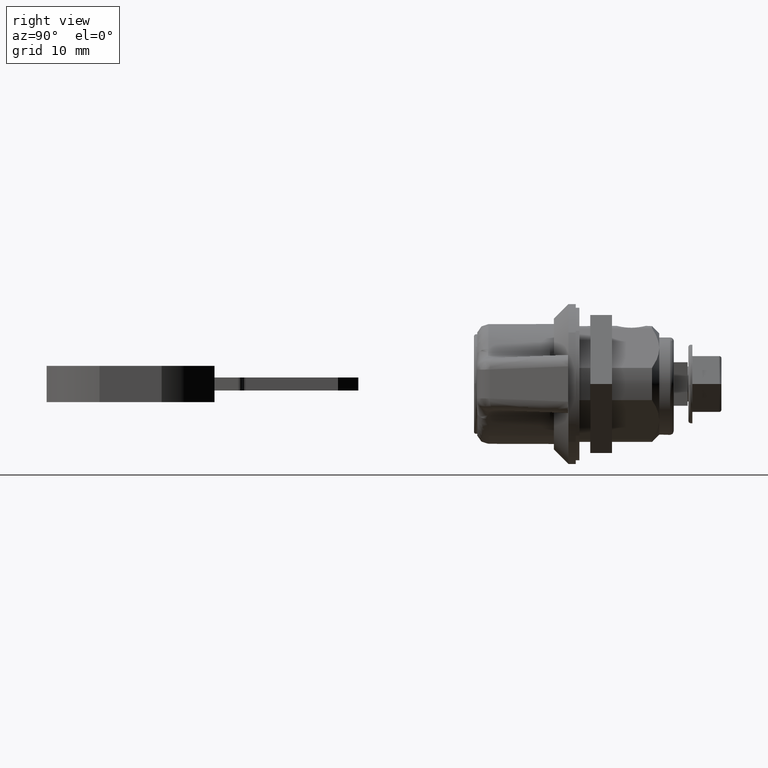
[diagram: clean part render]
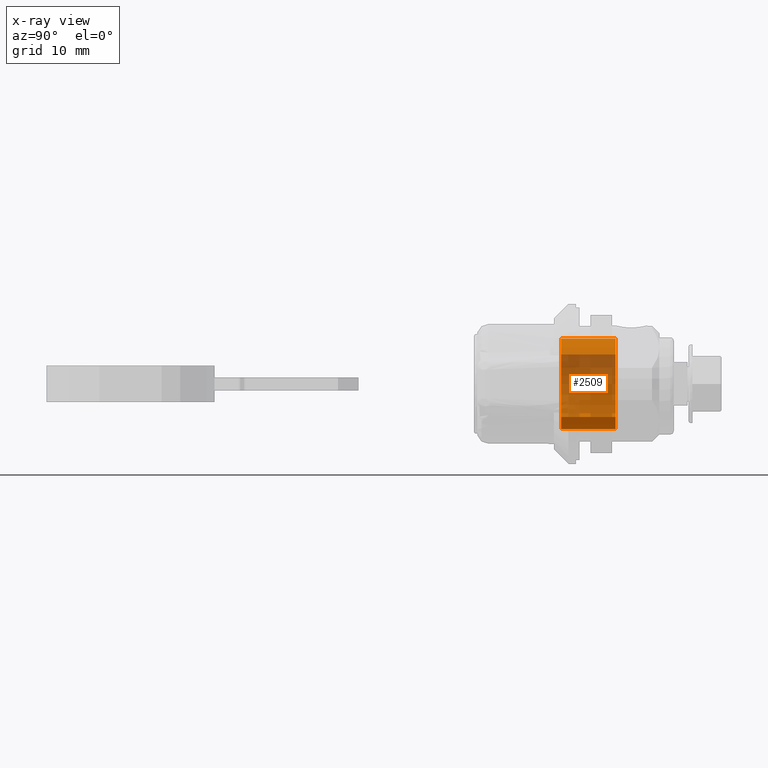
[diagram: x-ray — body ghosted, one internal face saturated and labeled with its STEP entity id]
A machine part, right view, then the same camera in x-ray: the body is ghosted and one INTERNAL B-rep face — a face not visible from any outside direction — is saturated and labeled: STEP entity #2509.
In plain terms, the highlighted face is a freeform B-spline surface patch.
Its self-contained STEP definition (entity closure, byte-faithful):
#2353=CARTESIAN_POINT('',(5.737499857507699,-4.772222768377906,4.035887739887772));
#2354=CARTESIAN_POINT('',(5.737499857507699,-4.656717395196967,4.172466705233175));
#2355=CARTESIAN_POINT('',(5.737499857507699,-4.533589818826797,4.302216098086075));
#2356=CARTESIAN_POINT('',(5.737499857507698,-0.231373720740835,8.835805916912870));
#2357=CARTESIAN_POINT('',(5.737499857507699,4.302216098085961,4.533589818826910));
#2358=CARTESIAN_POINT('',(5.737499857507698,8.835805916912758,0.231373720740949));
#2359=CARTESIAN_POINT('',(5.737499857507699,4.533589818826797,-4.302216098085848));
#2360=CARTESIAN_POINT('',(5.737499857507698,0.231373720740835,-8.835805916912644));
#2361=CARTESIAN_POINT('',(5.737499857507699,-4.302216098085961,-4.533589818826683));
#2362=CARTESIAN_POINT('',(-2.142187642492250,-4.772222768377906,4.035887739887772));
#2363=CARTESIAN_POINT('',(-2.142187642492250,-4.656717395196967,4.172466705233175));
#2364=CARTESIAN_POINT('',(-2.142187642492250,-4.533589818826797,4.302216098086075));
#2365=CARTESIAN_POINT('',(-2.142187642492249,-0.231373720740835,8.835805916912870));
#2366=CARTESIAN_POINT('',(-2.142187642492250,4.302216098085961,4.533589818826910));
#2367=CARTESIAN_POINT('',(-2.142187642492249,8.835805916912758,0.231373720740949));
#2368=CARTESIAN_POINT('',(-2.142187642492250,4.533589818826797,-4.302216098085848));
#2369=CARTESIAN_POINT('',(-2.142187642492249,0.231373720740835,-8.835805916912644));
#2370=CARTESIAN_POINT('',(-2.142187642492250,-4.302216098085961,-4.533589818826683));
#2378=(BOUNDED_SURFACE()B_SPLINE_SURFACE(2,1,((#2353,#2362),(#2354,#2363),(#2355,#2364),(#2356,#2365),(#2357,#2366),(#2358,#2367),(#2359,#2368),(#2360,#2369),(#2361,#2370)),.UNSPECIFIED.,.F.,.F.,.U.)B_SPLINE_SURFACE_WITH_KNOTS((3,2,2,2,3),(2,2),(0.0,0.414213562373095,10.769552621700470,21.124891681027840,31.480230740355211),(0.0,7.879687499999949),.UNSPECIFIED.)GEOMETRIC_REPRESENTATION_ITEM()RATIONAL_B_SPLINE_SURFACE(((0.977505800795127,0.977505800795127),(0.988284271247462,0.988284271247462),(1.0,1.0),(0.707106781186548,0.707106781186548),(1.0,1.0),(0.707106781186548,0.707106781186548),(1.0,1.0),(0.707106781186548,0.707106781186548),(1.0,1.0)))REPRESENTATION_ITEM('')SURFACE());
#2379=CARTESIAN_POINT('',(5.549999857511837,-4.772223091826428,4.035888013487078));
#2380=VERTEX_POINT('',#2379);
#2381=CARTESIAN_POINT('',(5.549999857507700,0.0,6.250000000000114));
#2382=VERTEX_POINT('',#2381);
#2383=CARTESIAN_POINT('',(5.549999857511837,-4.772223091826428,4.035888013487078));
#2384=CARTESIAN_POINT('',(5.549999857511542,-4.425324034719100,4.446268912904022));
#2385=CARTESIAN_POINT('',(5.549999857510858,-3.645917832335862,5.157474801621769));
#2386=CARTESIAN_POINT('',(5.549999857509797,-2.413188762335102,5.812939267992069));
#2387=CARTESIAN_POINT('',(5.549999857508731,-1.187795303344650,6.171936204663518));
#2388=CARTESIAN_POINT('',(5.549999857508075,-0.424221928936391,6.250058372444712));
#2389=CARTESIAN_POINT('',(5.549999857507700,0.0,6.250000000000114));
#2390=B_SPLINE_CURVE_WITH_KNOTS('',3,(#2383,#2384,#2385,#2386,#2387,#2388,#2389),.UNSPECIFIED.,.F.,.U.,(4,1,1,1,4),(0.000000019635547,1.612050358420226,3.139235488905414,4.157383999816719,5.430052017227407),.UNSPECIFIED.);
#2391=EDGE_CURVE('',#2380,#2382,#2390,.T.);
#2392=ORIENTED_EDGE('',*,*,#2391,.T.);
#2393=CARTESIAN_POINT('',(5.549999857507700,6.249999999999764,-0.000001718434066));
#2394=VERTEX_POINT('',#2393);
#2395=CARTESIAN_POINT('',(5.549999857507700,0.0,6.250000000000114));
#2396=CARTESIAN_POINT('',(5.549999857507702,0.357925932443960,6.250018125414068));
#2397=CARTESIAN_POINT('',(5.549999857507698,1.150484070380060,6.181773486292920));
#2398=CARTESIAN_POINT('',(5.549999857507708,2.263419610876691,5.866430276711271));
#2399=CARTESIAN_POINT('',(5.549999857507695,3.432430367404526,5.278052811131130));
#2400=CARTESIAN_POINT('',(5.549999857507707,4.417868364656568,4.489383528433169));
#2401=CARTESIAN_POINT('',(5.549999857507691,5.177584146571000,3.551814117631621));
#2402=CARTESIAN_POINT('',(5.549999857507729,5.771583406701952,2.503486151143590));
#2403=CARTESIAN_POINT('',(5.549999857507633,6.159407415108974,1.329457897016730));
#2404=CARTESIAN_POINT('',(5.549999857507763,6.250029398176525,0.409050423241532));
#2405=CARTESIAN_POINT('',(5.549999857507700,6.249999999999764,-0.000001718434066));
#2406=B_SPLINE_CURVE_WITH_KNOTS('',3,(#2395,#2396,#2397,#2398,#2399,#2400,#2401,#2402,#2403,#2404,#2405),.UNSPECIFIED.,.F.,.U.,(4,1,1,1,1,1,1,1,4),(0.000000077575528,1.073786425209429,2.377685244971269,3.451479842068220,4.985446546824647,6.135943936953376,7.056354885323168,8.590365516479002,9.817539611516082),.UNSPECIFIED.);
#2407=EDGE_CURVE('',#2382,#2394,#2406,.T.);
#2408=ORIENTED_EDGE('',*,*,#2407,.T.);
#2409=CARTESIAN_POINT('',(5.549999857507700,0.0,-6.249999999999886));
#2410=VERTEX_POINT('',#2409);
#2411=CARTESIAN_POINT('',(5.549999857507700,6.249999999999764,-0.000001718434066));
#2412=CARTESIAN_POINT('',(5.549999857507701,6.250016550534957,-0.357927141868768));
#2413=CARTESIAN_POINT('',(5.549999857507702,6.181778845629067,-1.150488312491464));
#2414=CARTESIAN_POINT('',(5.549999857507688,5.866434341947322,-2.263425042678031));
#2415=CARTESIAN_POINT('',(5.549999857507710,5.324143626971752,-3.340718503844944));
#2416=CARTESIAN_POINT('',(5.549999857507697,4.701933066465572,-4.158496199970537));
#2417=CARTESIAN_POINT('',(5.549999857507697,3.885679955769696,-4.935660035261714));
#2418=CARTESIAN_POINT('',(5.549999857507718,3.008824478193837,-5.521582762051125));
#2419=CARTESIAN_POINT('',(5.549999857507698,2.039737446559116,-5.929886900198724));
#2420=CARTESIAN_POINT('',(5.549999857507576,1.073757181518244,-6.184488770560591));
#2421=CARTESIAN_POINT('',(5.549999857508009,0.409060620411965,-6.250057453708513));
#2422=CARTESIAN_POINT('',(5.549999857507700,0.0,-6.249999999999886));
#2423=B_SPLINE_CURVE_WITH_KNOTS('',3,(#2411,#2412,#2413,#2414,#2415,#2416,#2417,#2418,#2419,#2420,#2421,#2422),.UNSPECIFIED.,.F.,.U.,(4,1,1,1,1,1,1,1,1,4),(0.000000078177489,1.073786214077876,2.377684776297214,3.451479160883383,4.678702323695970,5.445636560566485,6.826248308981661,7.823357122230417,8.590363821540986,9.817537674428078),.UNSPECIFIED.);
#2424=EDGE_CURVE('',#2394,#2410,#2423,.T.);
#2425=ORIENTED_EDGE('',*,*,#2424,.T.);
#2426=CARTESIAN_POINT('',(5.549999857503693,-4.302215831596614,-4.533589480269568));
#2427=VERTEX_POINT('',#2426);
#2428=CARTESIAN_POINT('',(5.549999857507700,0.0,-6.249999999999886));
#2429=CARTESIAN_POINT('',(5.549999857507314,-0.420142178554452,-6.250050602825311));
#2430=CARTESIAN_POINT('',(5.549999857506496,-1.285125850283165,-6.162484351232604));
#2431=CARTESIAN_POINT('',(5.549999857505465,-2.398188979646017,-5.807871846621687));
#2432=CARTESIAN_POINT('',(5.549999857504513,-3.427637238074189,-5.263492716444940));
#2433=CARTESIAN_POINT('',(5.549999857503974,-3.997497165476650,-4.822846106288043));
#2434=CARTESIAN_POINT('',(5.549999857503693,-4.302215831596614,-4.533589480269568));
#2435=B_SPLINE_CURVE_WITH_KNOTS('',3,(#2428,#2429,#2430,#2431,#2432,#2433,#2434),.UNSPECIFIED.,.F.,.U.,(4,1,1,1,4),(0.000000021410777,1.260428944052890,2.594987939485224,3.484712679943367,4.745141602566381),.UNSPECIFIED.);
#2436=EDGE_CURVE('',#2410,#2427,#2435,.T.);
#2437=ORIENTED_EDGE('',*,*,#2436,.T.);
#2438=CARTESIAN_POINT('',(-1.950000142492249,-4.302215831255362,-4.533589480593405));
#2439=VERTEX_POINT('',#2438);
#2440=CARTESIAN_POINT('',(5.549999857503693,-4.302215831596614,-4.533589480269568));
#2441=CARTESIAN_POINT('',(-1.950000142492249,-4.302215831255362,-4.533589480593405));
#2442=QUASI_UNIFORM_CURVE('',1,(#2440,#2441),.UNSPECIFIED.,.F.,.U.);
#2443=EDGE_CURVE('',#2427,#2439,#2442,.T.);
#2444=ORIENTED_EDGE('',*,*,#2443,.T.);
#2445=CARTESIAN_POINT('',(-1.950000142492250,0.0,-6.249999999999886));
#2446=VERTEX_POINT('',#2445);
#2447=CARTESIAN_POINT('',(-1.950000142492250,0.0,-6.249999999999886));
#2448=CARTESIAN_POINT('',(-1.950000142492247,-0.420146036778551,-6.250065377351384));
#2449=CARTESIAN_POINT('',(-1.950000142492254,-1.112113001372982,-6.179936616028463));
#2450=CARTESIAN_POINT('',(-1.950000142492251,-2.163277994940653,-5.892538355805605));
#2451=CARTESIAN_POINT('',(-1.950000142492241,-3.225292198111176,-5.409273831459583));
#2452=CARTESIAN_POINT('',(-1.950000142492257,-3.943747032398595,-4.873916461801850));
#2453=CARTESIAN_POINT('',(-1.950000142492249,-4.302215831255362,-4.533589480593405));
#2454=B_SPLINE_CURVE_WITH_KNOTS('',3,(#2447,#2448,#2449,#2450,#2451,#2452,#2453),.UNSPECIFIED.,.F.,.U.,(4,1,1,1,4),(0.000000021411358,1.260428943928336,2.076000113979537,3.262284701609892,4.745141602095918),.UNSPECIFIED.);
#2455=EDGE_CURVE('',#2446,#2439,#2454,.T.);
#2456=ORIENTED_EDGE('',*,*,#2455,.F.);
#2457=CARTESIAN_POINT('',(-1.950000142492250,6.249999999999764,-0.000001718434066));
#2458=VERTEX_POINT('',#2457);
#2459=CARTESIAN_POINT('',(-1.950000142492250,6.249999999999764,-0.000001718434066));
#2460=CARTESIAN_POINT('',(-1.950000142492248,6.250184730850762,-0.562483809251659));
#2461=CARTESIAN_POINT('',(-1.950000142492252,6.131829188222485,-1.431622279001522));
#2462=CARTESIAN_POINT('',(-1.950000142492246,5.708606333826457,-2.614355760718321));
#2463=CARTESIAN_POINT('',(-1.950000142492253,5.220409332569537,-3.488605283765466));
#2464=CARTESIAN_POINT('',(-1.950000142492246,4.547615289790874,-4.329215803097775));
#2465=CARTESIAN_POINT('',(-1.950000142492266,3.667725608039337,-5.117026895667431));
#2466=CARTESIAN_POINT('',(-1.950000142492212,2.529513005817641,-5.771130404413028));
#2467=CARTESIAN_POINT('',(-1.950000142492320,1.252729583917384,-6.166877876969591));
#2468=CARTESIAN_POINT('',(-1.950000142492201,0.409058559489728,-6.250051743322564));
#2469=CARTESIAN_POINT('',(-1.950000142492250,0.0,-6.249999999999886));
#2470=B_SPLINE_CURVE_WITH_KNOTS('',3,(#2459,#2460,#2461,#2462,#2463,#2464,#2465,#2466,#2467,#2468,#2469),.UNSPECIFIED.,.F.,.U.,(4,1,1,1,1,1,1,1,4),(0.000000078177489,1.687383476287508,2.607786157615392,3.758284657183848,4.678702323695970,5.829139105079930,7.286453085085782,8.590363821540986,9.817537674428078),.UNSPECIFIED.);
#2471=EDGE_CURVE('',#2458,#2446,#2470,.T.);
#2472=ORIENTED_EDGE('',*,*,#2471,.F.);
#2473=CARTESIAN_POINT('',(-1.950000142492250,0.0,6.250000000000114));
#2474=VERTEX_POINT('',#2473);
#2475=CARTESIAN_POINT('',(-1.950000142492250,0.0,6.250000000000114));
#2476=CARTESIAN_POINT('',(-1.950000142492249,0.357924791366535,6.250017441148462));
#2477=CARTESIAN_POINT('',(-1.950000142492254,1.150490029833205,6.181777010259356));
#2478=CARTESIAN_POINT('',(-1.950000142492249,2.139757540806145,5.901468598075908));
#2479=CARTESIAN_POINT('',(-1.950000142492253,3.068309378990488,5.469211676703687));
#2480=CARTESIAN_POINT('',(-1.950000142492254,3.799620304815665,4.993440486084932));
#2481=CARTESIAN_POINT('',(-1.950000142492247,4.563300559416581,4.309780991529302));
#2482=CARTESIAN_POINT('',(-1.950000142492250,5.129098254440224,3.611668806928738));
#2483=CARTESIAN_POINT('',(-1.950000142492254,5.676353823849177,2.685867973158584));
#2484=CARTESIAN_POINT('',(-1.950000142492236,6.120722372186066,1.533914540838754));
#2485=CARTESIAN_POINT('',(-1.950000142492253,6.250156637209579,0.536902440685298));
#2486=CARTESIAN_POINT('',(-1.950000142492250,6.249999999999764,-0.000001718434066));
#2487=B_SPLINE_CURVE_WITH_KNOTS('',3,(#2475,#2476,#2477,#2478,#2479,#2480,#2481,#2482,#2483,#2484,#2485,#2486),.UNSPECIFIED.,.F.,.U.,(4,1,1,1,1,1,1,1,1,4),(0.000000077575528,1.073786425209429,2.377685244971269,3.067985110370575,4.141778771921209,4.985446546824647,6.135943936953376,6.826249656009910,8.206862982858707,9.817539611516082),.UNSPECIFIED.);
#2488=EDGE_CURVE('',#2474,#2458,#2487,.T.);
#2489=ORIENTED_EDGE('',*,*,#2488,.F.);
#2490=CARTESIAN_POINT('',(-1.950000142492250,-4.772223091826776,4.035888013486667));
#2491=VERTEX_POINT('',#2490);
#2492=CARTESIAN_POINT('',(-1.950000142492250,-4.772223091826776,4.035888013486667));
#2493=CARTESIAN_POINT('',(-1.950000142492248,-4.461837945382452,4.403072205834826));
#2494=CARTESIAN_POINT('',(-1.950000142492252,-3.901064430142843,4.928803293378427));
#2495=CARTESIAN_POINT('',(-1.950000142492250,-2.851136545232450,5.602093962504214));
#2496=CARTESIAN_POINT('',(-1.950000142492246,-1.611940055983197,6.106934880752236));
#2497=CARTESIAN_POINT('',(-1.950000142492258,-0.565652283298861,6.250208035548523));
#2498=CARTESIAN_POINT('',(-1.950000142492250,0.0,6.250000000000114));
#2499=B_SPLINE_CURVE_WITH_KNOTS('',3,(#2492,#2493,#2494,#2495,#2496,#2497,#2498),.UNSPECIFIED.,.F.,.U.,(4,1,1,1,4),(0.000000019635758,1.442358093253747,2.290816599695928,3.733155595163645,5.430052017227942),.UNSPECIFIED.);
#2500=EDGE_CURVE('',#2491,#2474,#2499,.T.);
#2501=ORIENTED_EDGE('',*,*,#2500,.F.);
#2502=CARTESIAN_POINT('',(5.549999857511837,-4.772223091826428,4.035888013487078));
#2503=CARTESIAN_POINT('',(-1.950000142492250,-4.772223091826776,4.035888013486667));
#2504=QUASI_UNIFORM_CURVE('',1,(#2502,#2503),.UNSPECIFIED.,.F.,.U.);
#2505=EDGE_CURVE('',#2380,#2491,#2504,.T.);
#2506=ORIENTED_EDGE('',*,*,#2505,.F.);
#2507=EDGE_LOOP('',(#2392,#2408,#2425,#2437,#2444,#2456,#2472,#2489,#2501,#2506));
#2508=FACE_OUTER_BOUND('',#2507,.T.);
#2509=ADVANCED_FACE('',(#2508),#2378,.T.);